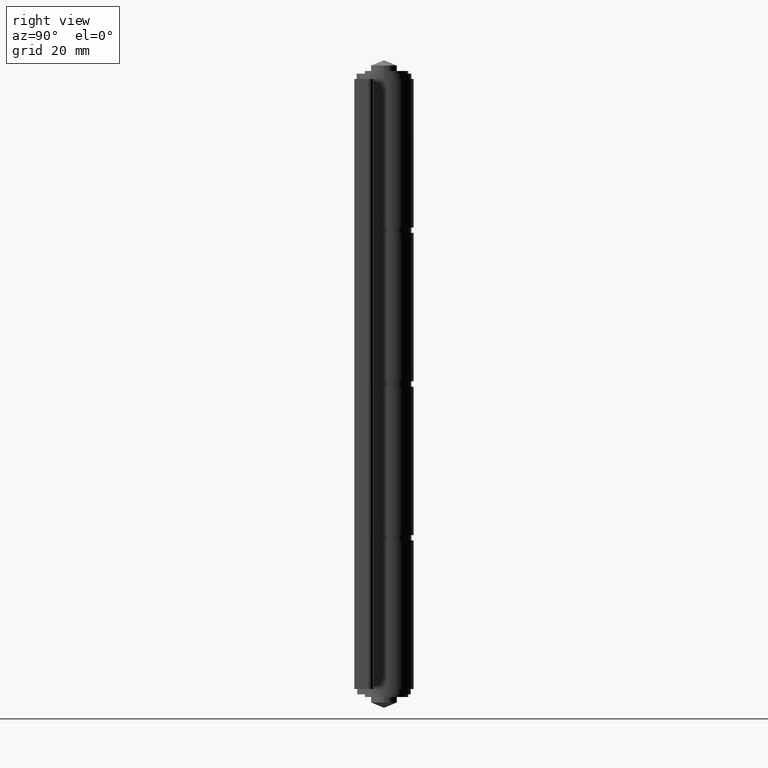
[diagram: clean part render]
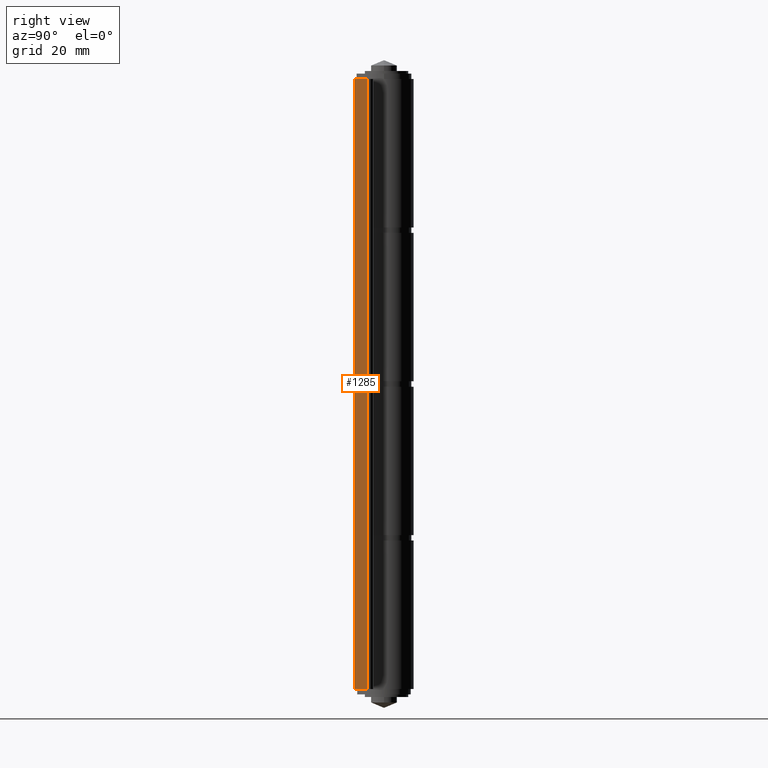
[diagram: same view with one face highlighted and labeled with its STEP entity id]
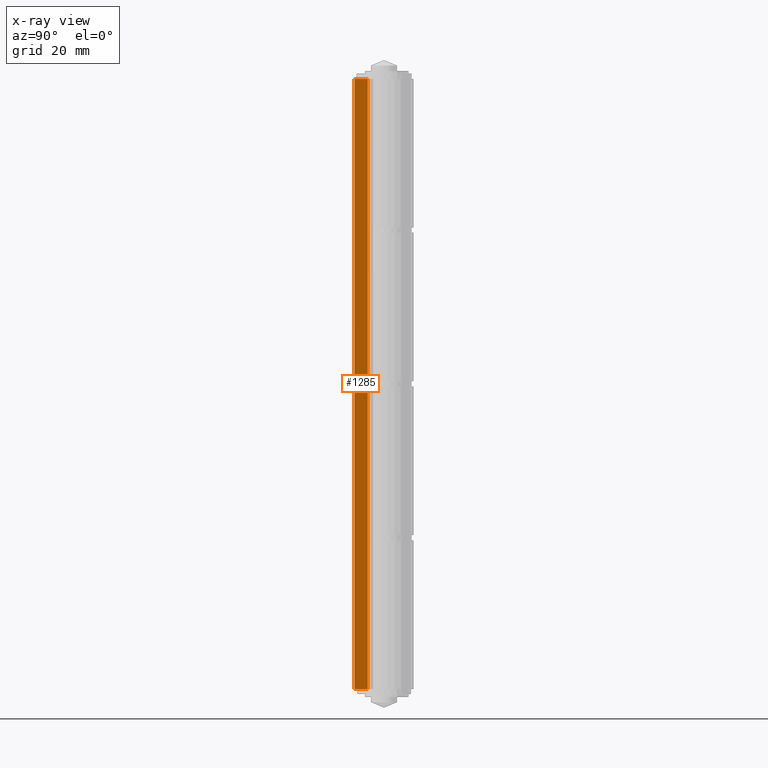
[diagram: x-ray of the same camera — body ghosted, the highlighted face saturated]
A machine part, right view. The second image highlights one B-rep face of the part: STEP entity #1285.
The next image is the same camera in x-ray: the body ghosted, the highlighted face saturated — about 0% of this face is hidden behind the body in this view.
In plain terms, the highlighted planar face has unit normal (1, -0, 0).
Its self-contained STEP definition (entity closure, byte-faithful):
#121=LINE('',#2126,#201);
#124=LINE('',#2137,#204);
#126=LINE('',#2140,#206);
#127=LINE('',#2142,#207);
#201=VECTOR('',#1725,113.);
#204=VECTOR('',#1736,113.);
#206=VECTOR('',#1740,2.5);
#207=VECTOR('',#1743,2.5);
#256=PLANE('',#1420);
#410=FACE_OUTER_BOUND('',#529,.T.);
#529=EDGE_LOOP('',(#1099,#1100,#1101,#1102));
#721=VERTEX_POINT('',#2123);
#722=VERTEX_POINT('',#2125);
#723=VERTEX_POINT('',#2130);
#726=VERTEX_POINT('',#2135);
#857=EDGE_CURVE('',#722,#721,#121,.T.);
#862=EDGE_CURVE('',#726,#723,#124,.T.);
#864=EDGE_CURVE('',#723,#721,#126,.T.);
#865=EDGE_CURVE('',#722,#726,#127,.T.);
#1099=ORIENTED_EDGE('',*,*,#862,.F.);
#1100=ORIENTED_EDGE('',*,*,#865,.F.);
#1101=ORIENTED_EDGE('',*,*,#857,.T.);
#1102=ORIENTED_EDGE('',*,*,#864,.F.);
#1285=ADVANCED_FACE('',(#410),#256,.T.);
#1420=AXIS2_PLACEMENT_3D('',#2141,#1741,#1742);
#1725=DIRECTION('',(0.,0.,-1.));
#1736=DIRECTION('',(0.,0.,-1.));
#1740=DIRECTION('',(-2.53765262771464E-15,-1.,0.));
#1741=DIRECTION('center_axis',(1.,-2.53765262771464E-15,0.));
#1742=DIRECTION('ref_axis',(-2.48689957516035E-15,-1.,0.));
#1743=DIRECTION('',(2.53765262771464E-15,1.,0.));
#2123=CARTESIAN_POINT('',(31.,0.,-113.));
#2125=CARTESIAN_POINT('',(31.,0.,0.));
#2126=CARTESIAN_POINT('',(31.,0.,0.));
#2130=CARTESIAN_POINT('',(31.,2.5,-113.));
#2135=CARTESIAN_POINT('',(31.,2.5,0.));
#2137=CARTESIAN_POINT('',(31.,2.5,0.));
#2140=CARTESIAN_POINT('',(31.,0.,-113.));
#2141=CARTESIAN_POINT('Origin',(31.,3.5,0.));
#2142=CARTESIAN_POINT('',(31.,0.,0.));